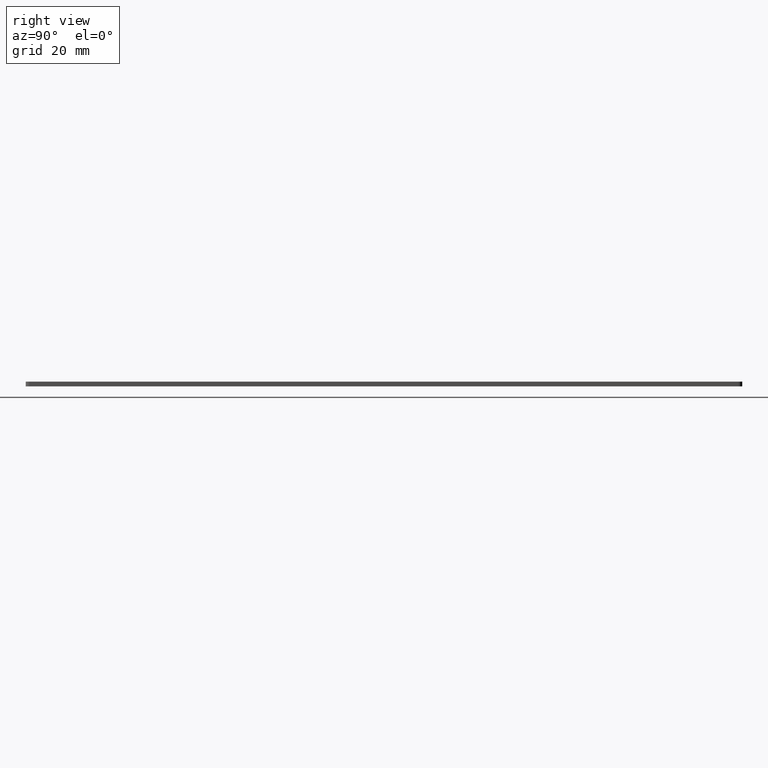
[diagram: clean part render]
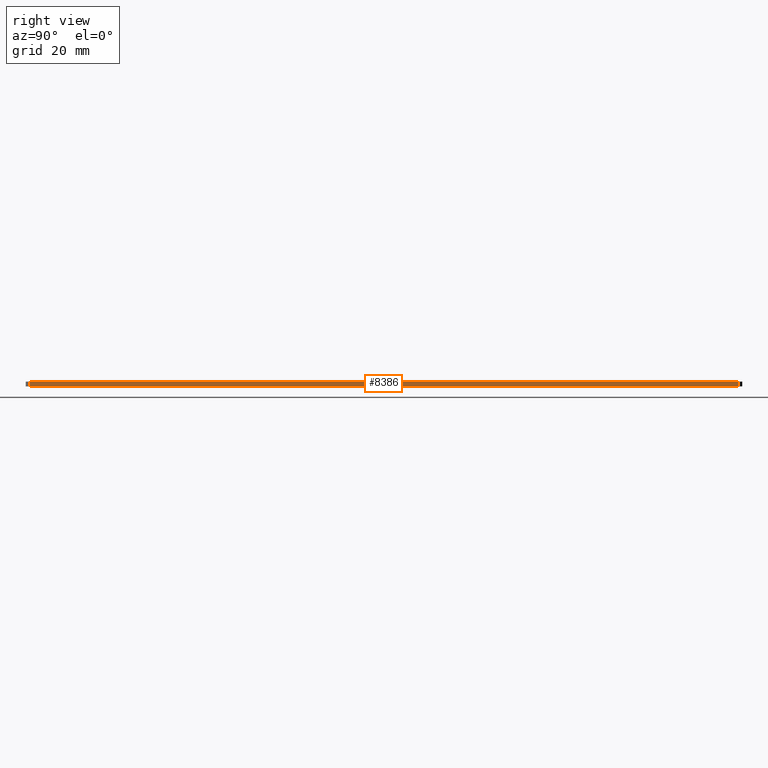
[diagram: same view with one face highlighted and labeled with its STEP entity id]
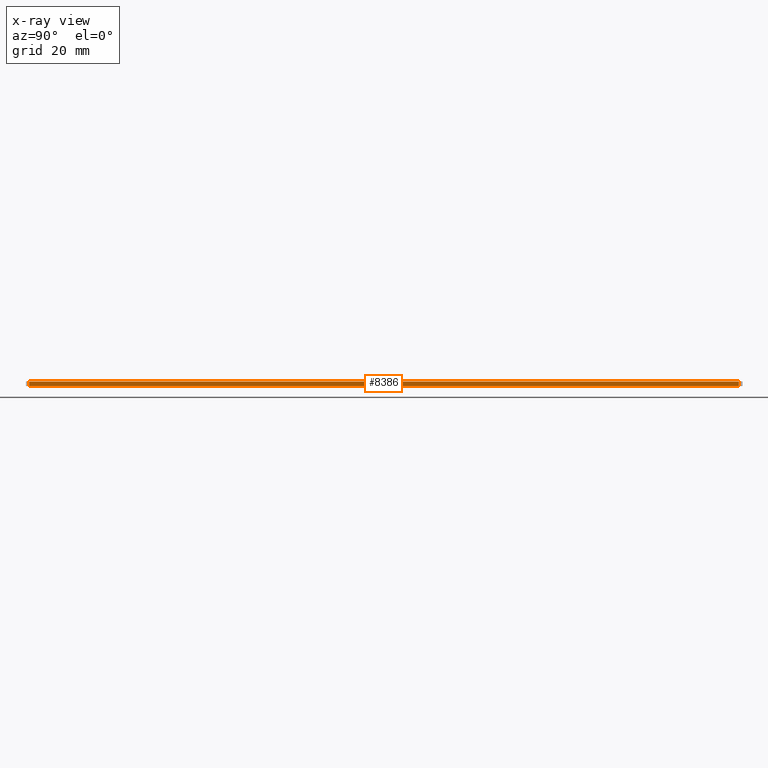
[diagram: x-ray of the same camera — body ghosted, the highlighted face saturated]
A machine part, right view. The second image highlights one B-rep face of the part: STEP entity #8386.
The next image is the same camera in x-ray: the body ghosted, the highlighted face saturated — about 0% of this face is hidden behind the body in this view.
In plain terms, the highlighted planar face has unit normal (1, 0, -0).
Its self-contained STEP definition (entity closure, byte-faithful):
#151 = EDGE_CURVE ( 'NONE', #11994, #12653, #9713, .T. ) ;
#271 = DIRECTION ( 'NONE',  ( 1.222712582186295900E-016, -1.000000000000000000, 0.0000000000000000000 ) ) ;
#645 = CARTESIAN_POINT ( 'NONE',  ( 23.24999999999998200, 113.5000000000000100, 1.500000000000000000 ) ) ;
#966 = EDGE_CURVE ( 'NONE', #7513, #12653, #7792, .T. ) ;
#1782 = VECTOR ( 'NONE', #12228, 1000.000000000000000 ) ;
#1789 = AXIS2_PLACEMENT_3D ( 'NONE', #5814, #9706, #4649 ) ;
#2034 = CARTESIAN_POINT ( 'NONE',  ( 23.25000000000001100, -112.2999999999999300, 0.0000000000000000000 ) ) ;
#2067 = CARTESIAN_POINT ( 'NONE',  ( 23.25000000000001100, -112.2999999999999800, 0.0000000000000000000 ) ) ;
#2103 = CARTESIAN_POINT ( 'NONE',  ( 23.24999999999998200, 112.3000000000000100, 0.0000000000000000000 ) ) ;
#3436 = ORIENTED_EDGE ( 'NONE', *, *, #8476, .T. ) ;
#3591 = CARTESIAN_POINT ( 'NONE',  ( 23.25000000000001100, -112.2999999999999300, 1.500000000000000000 ) ) ;
#3839 = ORIENTED_EDGE ( 'NONE', *, *, #12117, .T. ) ;
#4006 = VERTEX_POINT ( 'NONE', #7142 ) ;
#4649 = DIRECTION ( 'NONE',  ( -1.222712582186295900E-016, 1.000000000000000000, 0.0000000000000000000 ) ) ;
#5093 = VECTOR ( 'NONE', #271, 1000.000000000000000 ) ;
#5581 = ORIENTED_EDGE ( 'NONE', *, *, #151, .T. ) ;
#5683 = ORIENTED_EDGE ( 'NONE', *, *, #966, .F. ) ;
#5814 = CARTESIAN_POINT ( 'NONE',  ( 23.24999999999998200, 113.5000000000000100, 1.500000000000000000 ) ) ;
#6368 = CARTESIAN_POINT ( 'NONE',  ( 23.24999999999998200, 113.5000000000000100, 0.0000000000000000000 ) ) ;
#7142 = CARTESIAN_POINT ( 'NONE',  ( 23.24999999999998200, 112.3000000000000100, 1.500000000000000000 ) ) ;
#7380 = DIRECTION ( 'NONE',  ( 1.222712582186295900E-016, -1.000000000000000000, 0.0000000000000000000 ) ) ;
#7513 = VERTEX_POINT ( 'NONE', #2103 ) ;
#7792 = LINE ( 'NONE', #6368, #5093 ) ;
#8386 = ADVANCED_FACE ( 'NONE', ( #10203 ), #8699, .T. ) ;
#8476 = EDGE_CURVE ( 'NONE', #7513, #4006, #11482, .T. ) ;
#8699 = PLANE ( 'NONE',  #1789 ) ;
#9466 = EDGE_LOOP ( 'NONE', ( #3839, #5581, #5683, #3436 ) ) ;
#9706 = DIRECTION ( 'NONE',  ( 1.000000000000000000, 1.222712582186295900E-016, -0.0000000000000000000 ) ) ;
#9713 = LINE ( 'NONE', #2067, #1782 ) ;
#10203 = FACE_OUTER_BOUND ( 'NONE', #9466, .T. ) ;
#11314 = VECTOR ( 'NONE', #12099, 1000.000000000000000 ) ;
#11426 = VECTOR ( 'NONE', #7380, 1000.000000000000000 ) ;
#11482 = LINE ( 'NONE', #12030, #11314 ) ;
#11994 = VERTEX_POINT ( 'NONE', #3591 ) ;
#12030 = CARTESIAN_POINT ( 'NONE',  ( 23.24999999999998200, 112.3000000000000100, 1.500000000000000000 ) ) ;
#12099 = DIRECTION ( 'NONE',  ( 0.0000000000000000000, -0.0000000000000000000, 1.000000000000000000 ) ) ;
#12117 = EDGE_CURVE ( 'NONE', #4006, #11994, #12530, .T. ) ;
#12228 = DIRECTION ( 'NONE',  ( 0.0000000000000000000, 0.0000000000000000000, -1.000000000000000000 ) ) ;
#12530 = LINE ( 'NONE', #645, #11426 ) ;
#12653 = VERTEX_POINT ( 'NONE', #2034 ) ;